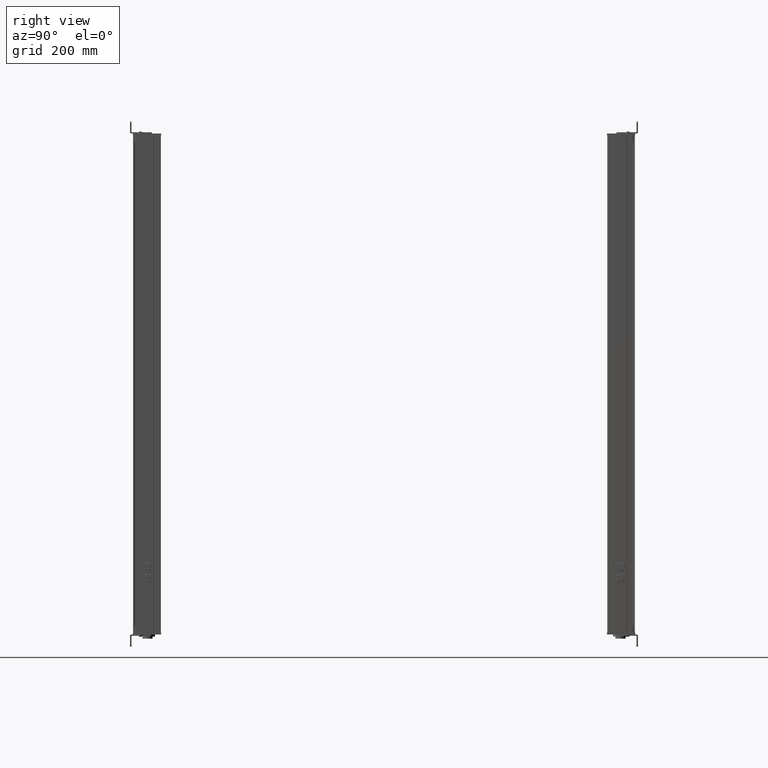
[diagram: clean part render]
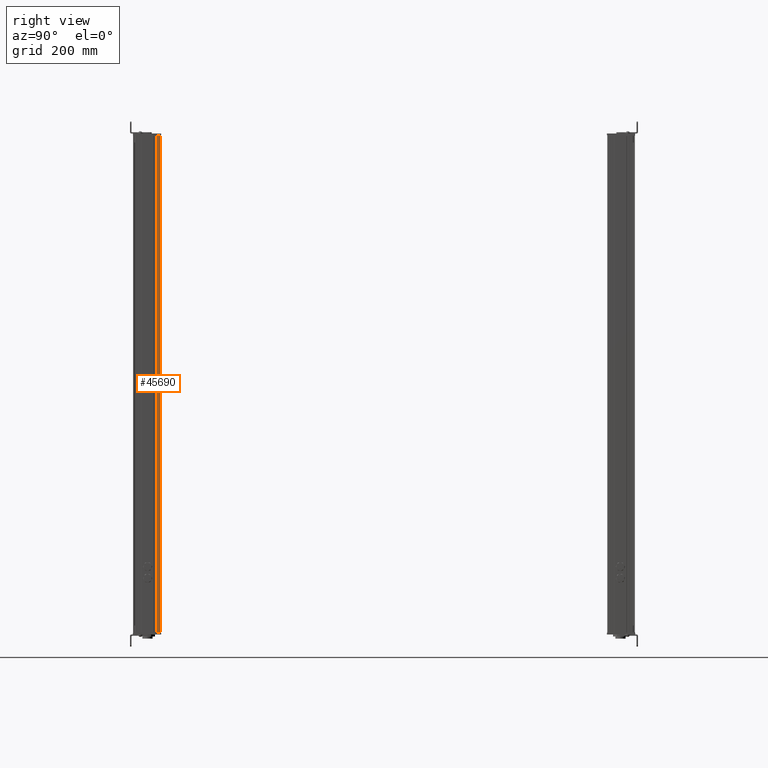
[diagram: same view with one face highlighted and labeled with its STEP entity id]
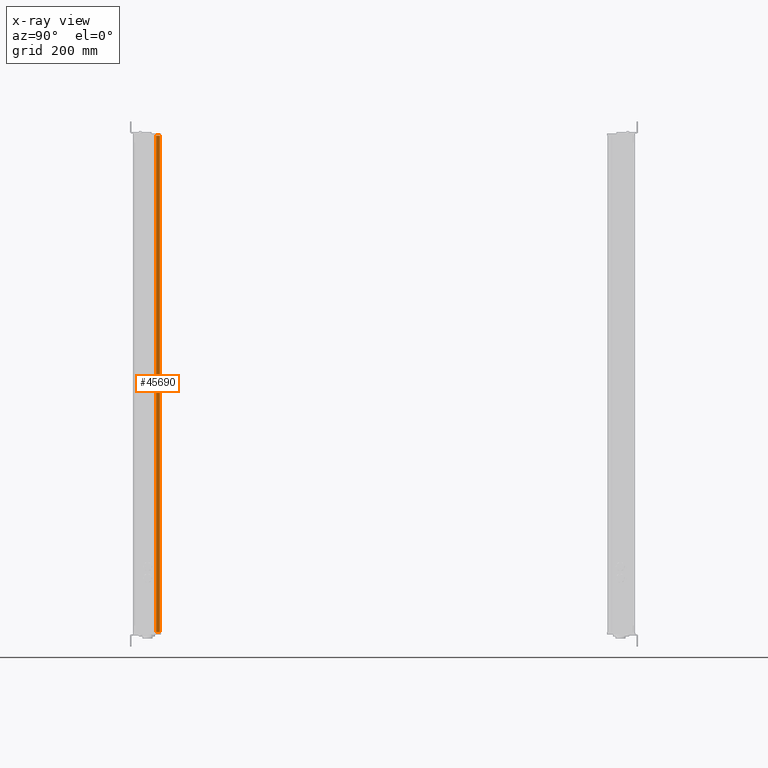
[diagram: x-ray of the same camera — body ghosted, the highlighted face saturated]
A machine part, right view. The second image highlights one B-rep face of the part: STEP entity #45690.
The next image is the same camera in x-ray: the body ghosted, the highlighted face saturated — about 0% of this face is hidden behind the body in this view.
In plain terms, the highlighted planar face has unit normal (1, 0, 0).
Its self-contained STEP definition (entity closure, byte-faithful):
#44242=CARTESIAN_POINT('Axis2P3D Location',(666.195883662,171.710394004,0.)) ;
#45643=CARTESIAN_POINT('Vertex',(666.195883661,171.710394004,0.)) ;
#45646=CARTESIAN_POINT('Line Origine',(666.195883661,171.710394004,556.)) ;
#45650=CARTESIAN_POINT('Vertex',(666.195883661,171.710394004,1112.)) ;
#45665=CARTESIAN_POINT('Line Origine',(666.195883662,175.885298663,0.)) ;
#45669=CARTESIAN_POINT('Vertex',(666.195883662,180.060203323,0.)) ;
#45672=CARTESIAN_POINT('Line Origine',(666.195883662,180.060203323,556.)) ;
#45676=CARTESIAN_POINT('Vertex',(666.195883662,180.060203323,1112.)) ;
#45679=CARTESIAN_POINT('Line Origine',(666.195883662,175.885298663,1112.)) ;
#44243=DIRECTION('Axis2P3D Direction',(1.,0.,0.)) ;
#44244=DIRECTION('Axis2P3D XDirection',(0.,1.,0.)) ;
#45647=DIRECTION('Vector Direction',(0.,0.,1.)) ;
#45666=DIRECTION('Vector Direction',(0.,1.,0.)) ;
#45673=DIRECTION('Vector Direction',(0.,0.,1.)) ;
#45680=DIRECTION('Vector Direction',(0.,1.,0.)) ;
#44245=AXIS2_PLACEMENT_3D('Plane Axis2P3D',#44242,#44243,#44244) ;
#45685=ORIENTED_EDGE('',*,*,#45652,.F.) ;
#45686=ORIENTED_EDGE('',*,*,#45671,.T.) ;
#45687=ORIENTED_EDGE('',*,*,#45678,.T.) ;
#45688=ORIENTED_EDGE('',*,*,#45683,.F.) ;
#45648=VECTOR('Line Direction',#45647,1.) ;
#45667=VECTOR('Line Direction',#45666,1.) ;
#45674=VECTOR('Line Direction',#45673,1.) ;
#45681=VECTOR('Line Direction',#45680,1.) ;
#45690=ADVANCED_FACE('Body.2',(#45689),#44246,.T.) ;
#45652=EDGE_CURVE('',#45644,#45651,#45649,.T.) ;
#45671=EDGE_CURVE('',#45644,#45670,#45668,.T.) ;
#45678=EDGE_CURVE('',#45670,#45677,#45675,.T.) ;
#45683=EDGE_CURVE('',#45651,#45677,#45682,.T.) ;
#45684=EDGE_LOOP('',(#45685,#45686,#45687,#45688)) ;
#45689=FACE_OUTER_BOUND('',#45684,.T.) ;
#45649=LINE('Line',#45646,#45648) ;
#45668=LINE('Line',#45665,#45667) ;
#45675=LINE('Line',#45672,#45674) ;
#45682=LINE('Line',#45679,#45681) ;
#44246=PLANE('Plane',#44245) ;
#45644=VERTEX_POINT('',#45643) ;
#45651=VERTEX_POINT('',#45650) ;
#45670=VERTEX_POINT('',#45669) ;
#45677=VERTEX_POINT('',#45676) ;